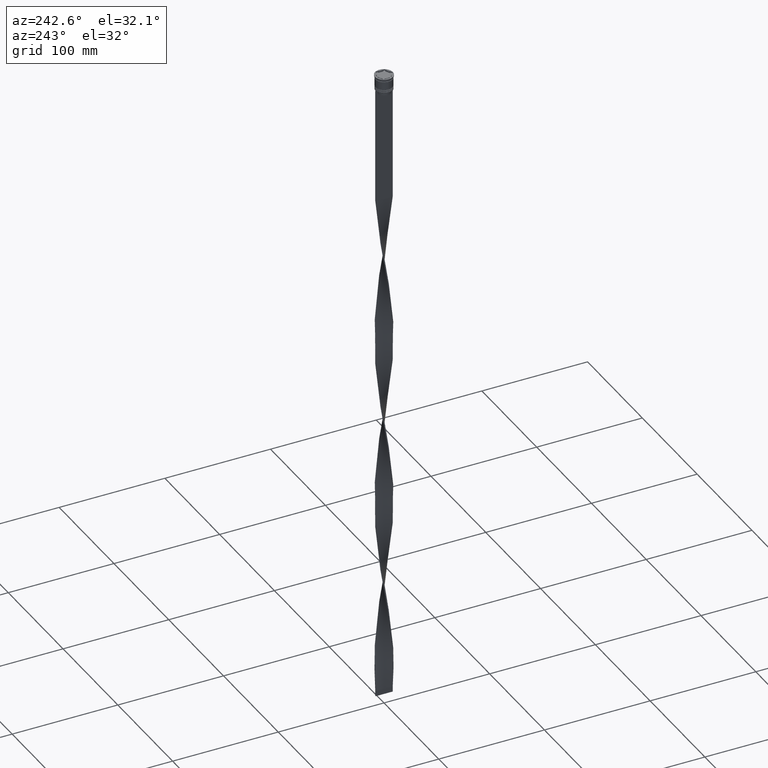
[diagram: clean part render]
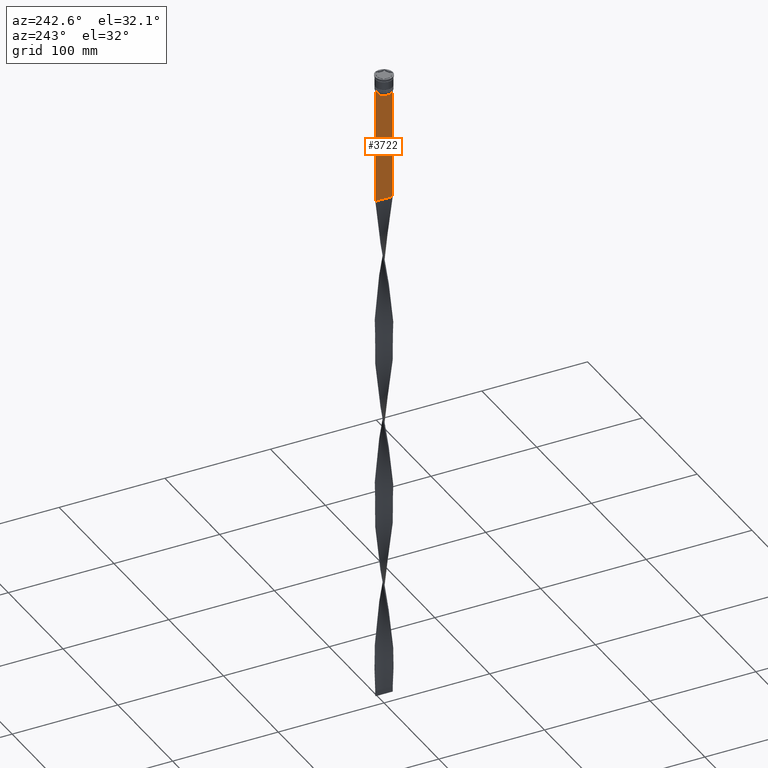
[diagram: same view with one face highlighted and labeled with its STEP entity id]
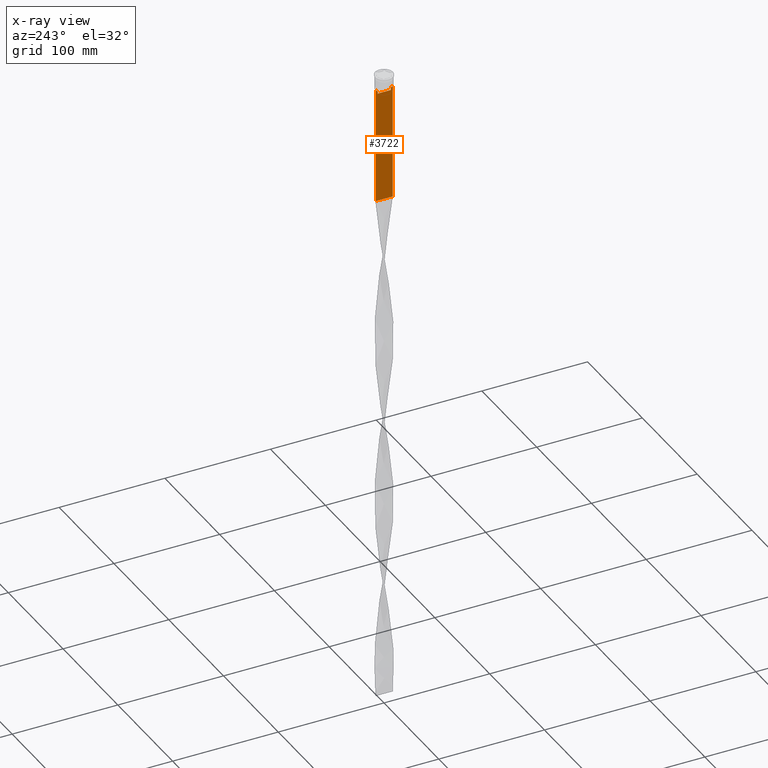
[diagram: x-ray of the same camera — body ghosted, the highlighted face saturated]
A machine part, auxiliary view. The second image highlights one B-rep face of the part: STEP entity #3722.
The next image is the same camera in x-ray: the body ghosted, the highlighted face saturated — about 0% of this face is hidden behind the body in this view.
In plain terms, the highlighted planar face has unit normal (-1, 0, 0).
Its self-contained STEP definition (entity closure, byte-faithful):
#5 = DIRECTION ( 'NONE',  ( 0.000000000000000000, 0.000000000000000000, -1.000000000000000000 ) ) ;
#122 = VERTEX_POINT ( 'NONE', #1282 ) ;
#222 = ORIENTED_EDGE ( 'NONE', *, *, #648, .F. ) ;
#325 = VECTOR ( 'NONE', #1480, 1000.000000000000000 ) ;
#371 = DIRECTION ( 'NONE',  ( 0.000000000000000000, -1.000000000000000000, 0.000000000000000000 ) ) ;
#374 = ORIENTED_EDGE ( 'NONE', *, *, #2810, .F. ) ;
#436 = LINE ( 'NONE', #1142, #325 ) ;
#450 = EDGE_CURVE ( 'NONE', #4359, #585, #2385, .T. ) ;
#457 = ORIENTED_EDGE ( 'NONE', *, *, #3541, .F. ) ;
#459 = EDGE_CURVE ( 'NONE', #2371, #3972, #2404, .T. ) ;
#498 = CARTESIAN_POINT ( 'NONE',  ( -0.4999999999999998890, -8.000000000000003553, -123.0000000000000000 ) ) ;
#574 = VECTOR ( 'NONE', #1708, 1000.000000000000000 ) ;
#585 = VERTEX_POINT ( 'NONE', #3343 ) ;
#648 = EDGE_CURVE ( 'NONE', #3348, #122, #2362, .T. ) ;
#653 = EDGE_CURVE ( 'NONE', #3972, #3616, #3749, .T. ) ;
#738 = DIRECTION ( 'NONE',  ( -1.000000000000000000, 0.000000000000000000, 0.000000000000000000 ) ) ;
#800 = PLANE ( 'NONE',  #2063 ) ;
#848 = EDGE_CURVE ( 'NONE', #4009, #3886, #3450, .T. ) ;
#1108 = B_SPLINE_CURVE_WITH_KNOTS ( 'NONE', 3,
 ( #3445, #2761, #1403, #3812 ),
 .UNSPECIFIED., .F., .F.,
 ( 4, 4 ),
 ( 0.02996184199614749730, 0.03067452609193703841 ),
 .UNSPECIFIED. ) ;
#1142 = CARTESIAN_POINT ( 'NONE',  ( -0.4999999999999998890, -8.000000000000003553, -123.0000000000000000 ) ) ;
#1167 = ORIENTED_EDGE ( 'NONE', *, *, #2722, .F. ) ;
#1282 = CARTESIAN_POINT ( 'NONE',  ( -0.4999999999999998890, -6.380438856379708312, -14.50000000000000000 ) ) ;
#1319 = CARTESIAN_POINT ( 'NONE',  ( -0.4999999999999998890, -8.000000000000003553, -14.00000000000000178 ) ) ;
#1394 = LINE ( 'NONE', #4158, #4225 ) ;
#1403 = CARTESIAN_POINT ( 'NONE',  ( -0.4999999999999998890, -6.714736947305992132, -14.16668390685738999 ) ) ;
#1466 = EDGE_CURVE ( 'NONE', #2263, #4359, #4043, .T. ) ;
#1480 = DIRECTION ( 'NONE',  ( 0.000000000000000000, 1.000000000000000000, 0.000000000000000000 ) ) ;
#1499 = EDGE_CURVE ( 'NONE', #122, #2371, #1108, .T. ) ;
#1609 = DIRECTION ( 'NONE',  ( 0.000000000000000000, -1.000000000000000000, 0.000000000000000000 ) ) ;
#1655 = CARTESIAN_POINT ( 'NONE',  ( -0.4999999999999998890, -6.380438856379708312, -17.00000000000000000 ) ) ;
#1686 = DIRECTION ( 'NONE',  ( 0.000000000000000000, -1.000000000000000000, 0.000000000000000000 ) ) ;
#1708 = DIRECTION ( 'NONE',  ( -0.000000000000000000, -0.000000000000000000, 1.000000000000000000 ) ) ;
#1718 = ORIENTED_EDGE ( 'NONE', *, *, #459, .F. ) ;
#1726 = VECTOR ( 'NONE', #1686, 1000.000000000000000 ) ;
#1738 = CARTESIAN_POINT ( 'NONE',  ( -0.4999999999999998890, -8.000000000000003553, -14.00000000000000178 ) ) ;
#1808 = CARTESIAN_POINT ( 'NONE',  ( -0.4999999999999998890, -6.881860213634098500, -14.00000000000000178 ) ) ;
#1927 = VECTOR ( 'NONE', #371, 1000.000000000000000 ) ;
#1945 = CARTESIAN_POINT ( 'NONE',  ( -0.4999999999999998890, -8.000000000000003553, -14.00000000000000178 ) ) ;
#1980 = CARTESIAN_POINT ( 'NONE',  ( -0.4999999999999998890, 6.380438856379708312, 0.000000000000000000 ) ) ;
#1988 = LINE ( 'NONE', #1945, #3863 ) ;
#1989 = VECTOR ( 'NONE', #2481, 1000.000000000000000 ) ;
#2003 = DIRECTION ( 'NONE',  ( 0.000000000000000000, 0.000000000000000000, -1.000000000000000000 ) ) ;
#2044 = CARTESIAN_POINT ( 'NONE',  ( -0.4999999999999998890, 7.999999999999996447, -14.00000000000000178 ) ) ;
#2045 = CARTESIAN_POINT ( 'NONE',  ( -0.4999999999999998890, -6.380438856379708312, 0.000000000000000000 ) ) ;
#2063 = AXIS2_PLACEMENT_3D ( 'NONE', #3840, #738, #2175 ) ;
#2175 = DIRECTION ( 'NONE',  ( 0.000000000000000000, 0.000000000000000000, 1.000000000000000000 ) ) ;
#2234 = EDGE_LOOP ( 'NONE', ( #4385, #1167, #2974, #3221, #457, #374, #4100, #1718, #3907, #222, #3519, #3437 ) ) ;
#2263 = VERTEX_POINT ( 'NONE', #3484 ) ;
#2279 = VERTEX_POINT ( 'NONE', #3764 ) ;
#2362 = LINE ( 'NONE', #2045, #574 ) ;
#2371 = VERTEX_POINT ( 'NONE', #1808 ) ;
#2385 = LINE ( 'NONE', #1980, #3680 ) ;
#2401 = CARTESIAN_POINT ( 'NONE',  ( -0.4999999999999998890, 6.547597841304911626, -14.33335192459222718 ) ) ;
#2404 = LINE ( 'NONE', #1319, #1726 ) ;
#2481 = DIRECTION ( 'NONE',  ( 0.000000000000000000, -1.000000000000000000, 0.000000000000000000 ) ) ;
#2500 = CARTESIAN_POINT ( 'NONE',  ( -0.4999999999999998890, 6.380438856379708312, -14.50000000000000000 ) ) ;
#2722 = EDGE_CURVE ( 'NONE', #2279, #2263, #1988, .T. ) ;
#2724 = CARTESIAN_POINT ( 'NONE',  ( -0.4999999999999998890, -8.000000000000003553, -14.00000000000000178 ) ) ;
#2761 = CARTESIAN_POINT ( 'NONE',  ( -0.4999999999999998890, -6.547597841511246131, -14.33335192438652328 ) ) ;
#2801 = CARTESIAN_POINT ( 'NONE',  ( -0.4999999999999998890, 6.399999999999999467, -17.00000000000000000 ) ) ;
#2810 = EDGE_CURVE ( 'NONE', #3616, #3875, #1394, .T. ) ;
#2843 = LINE ( 'NONE', #2801, #1989 ) ;
#2974 = ORIENTED_EDGE ( 'NONE', *, *, #4456, .F. ) ;
#3106 = CARTESIAN_POINT ( 'NONE',  ( -0.4999999999999998890, 7.999999999999996447, 2.031219541881394530 ) ) ;
#3221 = ORIENTED_EDGE ( 'NONE', *, *, #848, .T. ) ;
#3235 = CARTESIAN_POINT ( 'NONE',  ( -0.4999999999999998890, 7.999999999999996447, -123.0000000000000000 ) ) ;
#3343 = CARTESIAN_POINT ( 'NONE',  ( -0.4999999999999998890, 6.380438856379708312, -17.00000000000000000 ) ) ;
#3348 = VERTEX_POINT ( 'NONE', #1655 ) ;
#3396 = VECTOR ( 'NONE', #5, 1000.000000000000000 ) ;
#3409 = DIRECTION ( 'NONE',  ( 0.000000000000000000, -1.000000000000000000, 0.000000000000000000 ) ) ;
#3437 = ORIENTED_EDGE ( 'NONE', *, *, #450, .F. ) ;
#3445 = CARTESIAN_POINT ( 'NONE',  ( -0.4999999999999998890, -6.380438856379708312, -14.50000000000000000 ) ) ;
#3450 = LINE ( 'NONE', #3106, #3396 ) ;
#3466 = EDGE_CURVE ( 'NONE', #585, #3348, #2843, .T. ) ;
#3484 = CARTESIAN_POINT ( 'NONE',  ( -0.4999999999999998890, 6.881860213634098500, -14.00000000000000178 ) ) ;
#3496 = LINE ( 'NONE', #1738, #1927 ) ;
#3519 = ORIENTED_EDGE ( 'NONE', *, *, #3466, .F. ) ;
#3537 = CARTESIAN_POINT ( 'NONE',  ( -0.4999999999999998890, -8.000000000000003553, -14.00000000000000178 ) ) ;
#3541 = EDGE_CURVE ( 'NONE', #3875, #3886, #436, .T. ) ;
#3581 = CARTESIAN_POINT ( 'NONE',  ( -0.4999999999999998890, -7.884161337770806632, -14.00000000000000178 ) ) ;
#3616 = VERTEX_POINT ( 'NONE', #3537 ) ;
#3680 = VECTOR ( 'NONE', #2003, 1000.000000000000000 ) ;
#3722 = ADVANCED_FACE ( 'NONE', ( #3902 ), #800, .T. ) ;
#3749 = LINE ( 'NONE', #2724, #4049 ) ;
#3764 = CARTESIAN_POINT ( 'NONE',  ( -0.4999999999999998890, 7.884161337770806632, -14.00000000000000178 ) ) ;
#3812 = CARTESIAN_POINT ( 'NONE',  ( -0.4999999999999998890, -6.881860213634098500, -14.00000000000000178 ) ) ;
#3840 = CARTESIAN_POINT ( 'NONE',  ( -0.4999999999999998890, -8.000000000000003553, 2.031219541881394530 ) ) ;
#3863 = VECTOR ( 'NONE', #1609, 1000.000000000000000 ) ;
#3875 = VERTEX_POINT ( 'NONE', #498 ) ;
#3886 = VERTEX_POINT ( 'NONE', #3235 ) ;
#3902 = FACE_OUTER_BOUND ( 'NONE', #2234, .T. ) ;
#3907 = ORIENTED_EDGE ( 'NONE', *, *, #1499, .F. ) ;
#3972 = VERTEX_POINT ( 'NONE', #3581 ) ;
#4009 = VERTEX_POINT ( 'NONE', #2044 ) ;
#4043 = B_SPLINE_CURVE_WITH_KNOTS ( 'NONE', 3,
 ( #4126, #4171, #2401, #4195 ),
 .UNSPECIFIED., .F., .F.,
 ( 4, 4 ),
 ( 0.01172465562756038263, 0.01243276816391822651 ),
 .UNSPECIFIED. ) ;
#4049 = VECTOR ( 'NONE', #3409, 1000.000000000000000 ) ;
#4100 = ORIENTED_EDGE ( 'NONE', *, *, #653, .F. ) ;
#4115 = DIRECTION ( 'NONE',  ( 0.000000000000000000, 0.000000000000000000, -1.000000000000000000 ) ) ;
#4126 = CARTESIAN_POINT ( 'NONE',  ( -0.4999999999999998890, 6.881860213634098500, -14.00000000000000178 ) ) ;
#4158 = CARTESIAN_POINT ( 'NONE',  ( -0.4999999999999998890, -8.000000000000003553, 2.031219541881394530 ) ) ;
#4171 = CARTESIAN_POINT ( 'NONE',  ( -0.4999999999999998890, 6.714736947114692711, -14.16668390704818847 ) ) ;
#4195 = CARTESIAN_POINT ( 'NONE',  ( -0.4999999999999998890, 6.380438856379708312, -14.50000000000000000 ) ) ;
#4225 = VECTOR ( 'NONE', #4115, 1000.000000000000000 ) ;
#4359 = VERTEX_POINT ( 'NONE', #2500 ) ;
#4385 = ORIENTED_EDGE ( 'NONE', *, *, #1466, .F. ) ;
#4456 = EDGE_CURVE ( 'NONE', #4009, #2279, #3496, .T. ) ;